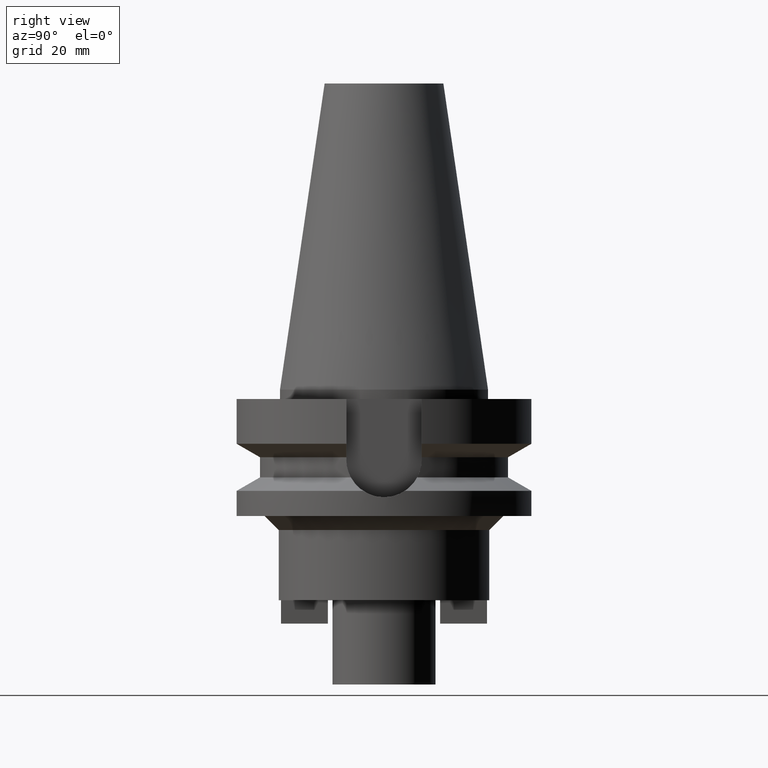
[diagram: clean part render]
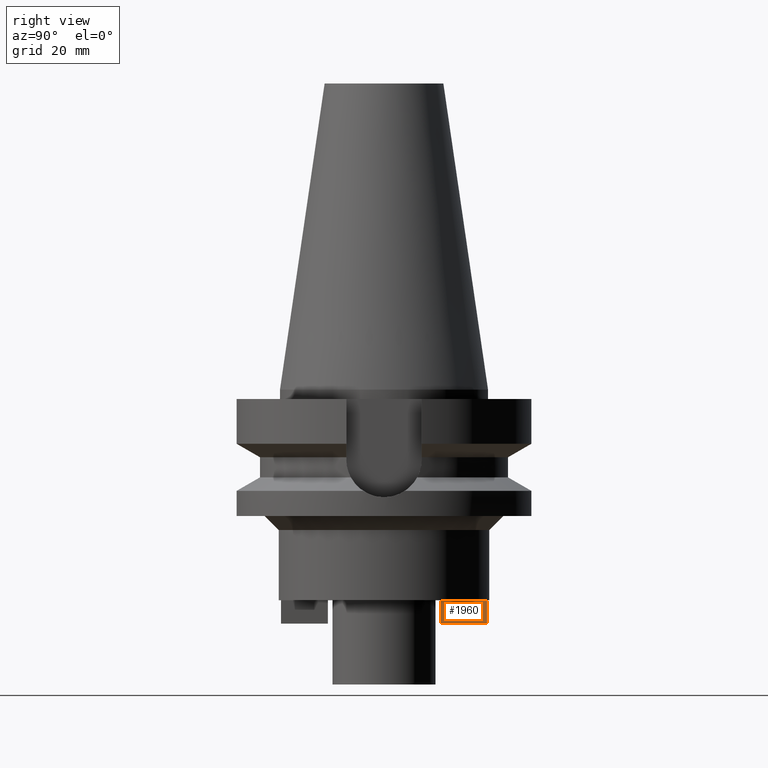
[diagram: same view with one face highlighted and labeled with its STEP entity id]
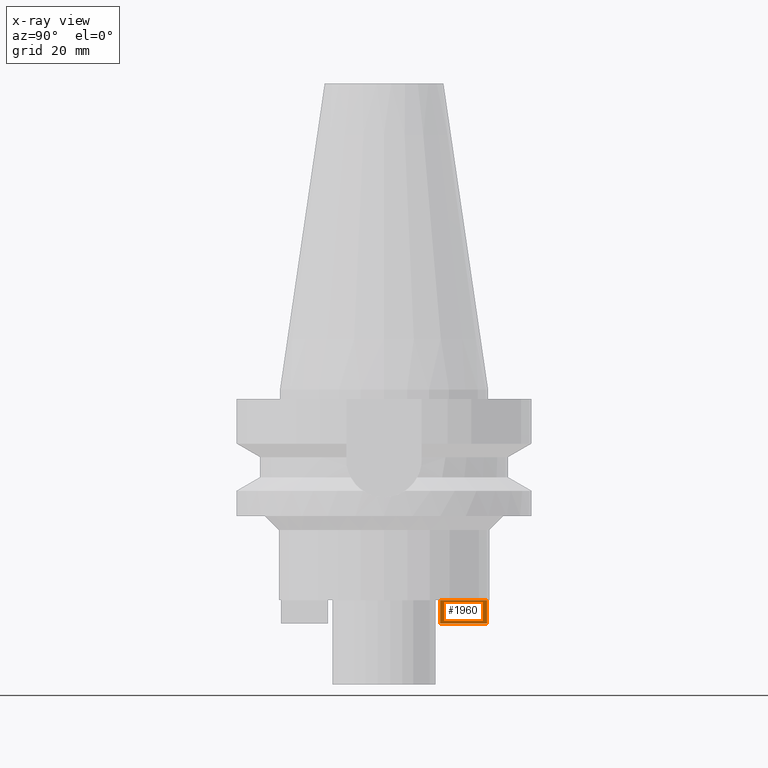
[diagram: x-ray of the same camera — body ghosted, the highlighted face saturated]
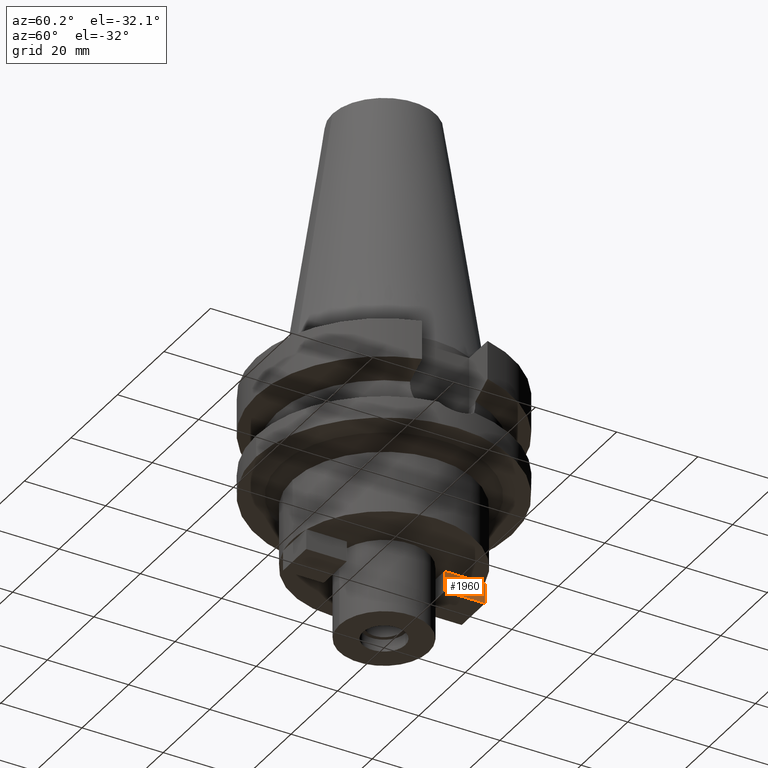
[diagram: same view with one face highlighted and labeled with its STEP entity id]
A machine part, right view. The second image highlights one B-rep face of the part: STEP entity #1960.
The next image is the same camera in x-ray: the body ghosted, the highlighted face saturated — about 0% of this face is hidden behind the body in this view.
A second angle (auxiliary view) of the same face is appended — the face is thin or edge-on in the first view.
In plain terms, the highlighted planar face has unit normal (1, 0, 0).
Its self-contained STEP definition (entity closure, byte-faithful):
#491=DIRECTION('',(0.E0,1.E0,0.E0));
#492=VECTOR('',#491,9.937410968480E0);
#493=CARTESIAN_POINT('',(5.E0,1.2E1,-4.5E1));
#494=LINE('',#493,#492);
#498=DIRECTION('',(1.106869926798E-12,1.E0,1.135251206972E-13));
#499=VECTOR('',#498,6.258903151973E-2);
#500=CARTESIAN_POINT('',(5.E0,2.193741096848E1,-4.5E1));
#501=LINE('',#500,#499);
#505=DIRECTION('',(0.E0,0.E0,-1.E0));
#506=VECTOR('',#505,5.E0);
#507=CARTESIAN_POINT('',(5.E0,2.2E1,-4.5E1));
#508=LINE('',#507,#506);
#512=DIRECTION('',(0.E0,-1.E0,0.E0));
#513=VECTOR('',#512,1.E1);
#514=CARTESIAN_POINT('',(5.E0,2.2E1,-5.E1));
#515=LINE('',#514,#513);
#519=DIRECTION('',(0.E0,0.E0,1.E0));
#520=VECTOR('',#519,5.E0);
#521=CARTESIAN_POINT('',(5.E0,1.2E1,-5.E1));
#522=LINE('',#521,#520);
#1351=CARTESIAN_POINT('',(5.E0,2.193741096848E1,-4.5E1));
#1352=VERTEX_POINT('',#1351);
#1353=CARTESIAN_POINT('',(5.E0,1.2E1,-4.5E1));
#1354=VERTEX_POINT('',#1353);
#1373=CARTESIAN_POINT('',(5.E0,2.2E1,-5.E1));
#1374=VERTEX_POINT('',#1373);
#1375=CARTESIAN_POINT('',(5.E0,2.2E1,-4.5E1));
#1376=VERTEX_POINT('',#1375);
#1482=CARTESIAN_POINT('',(5.E0,1.2E1,-5.E1));
#1483=VERTEX_POINT('',#1482);
#1945=CARTESIAN_POINT('',(5.E0,0.E0,0.E0));
#1946=DIRECTION('',(1.E0,0.E0,0.E0));
#1947=DIRECTION('',(0.E0,0.E0,1.E0));
#1948=AXIS2_PLACEMENT_3D('',#1945,#1946,#1947);
#1949=PLANE('',#1948);
#1950=ORIENTED_EDGE('',*,*,#1801,.T.);
#1952=ORIENTED_EDGE('',*,*,#1951,.T.);
#1954=ORIENTED_EDGE('',*,*,#1953,.T.);
#1956=ORIENTED_EDGE('',*,*,#1955,.T.);
#1957=ORIENTED_EDGE('',*,*,#1937,.T.);
#1958=EDGE_LOOP('',(#1950,#1952,#1954,#1956,#1957));
#1959=FACE_OUTER_BOUND('',#1958,.F.);
#1801=EDGE_CURVE('',#1354,#1352,#494,.T.);
#1937=EDGE_CURVE('',#1483,#1354,#522,.T.);
#1951=EDGE_CURVE('',#1352,#1376,#501,.T.);
#1953=EDGE_CURVE('',#1376,#1374,#508,.T.);
#1955=EDGE_CURVE('',#1374,#1483,#515,.T.);
#1960=ADVANCED_FACE('',(#1959),#1949,.T.);